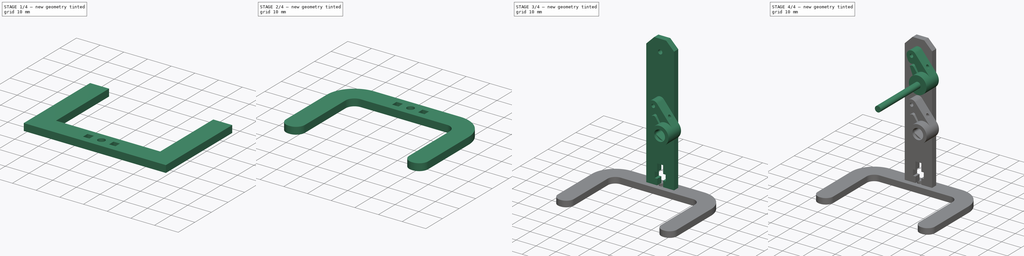
[diagram: build sequence overview — one tinted view per stage of 4, left to right]
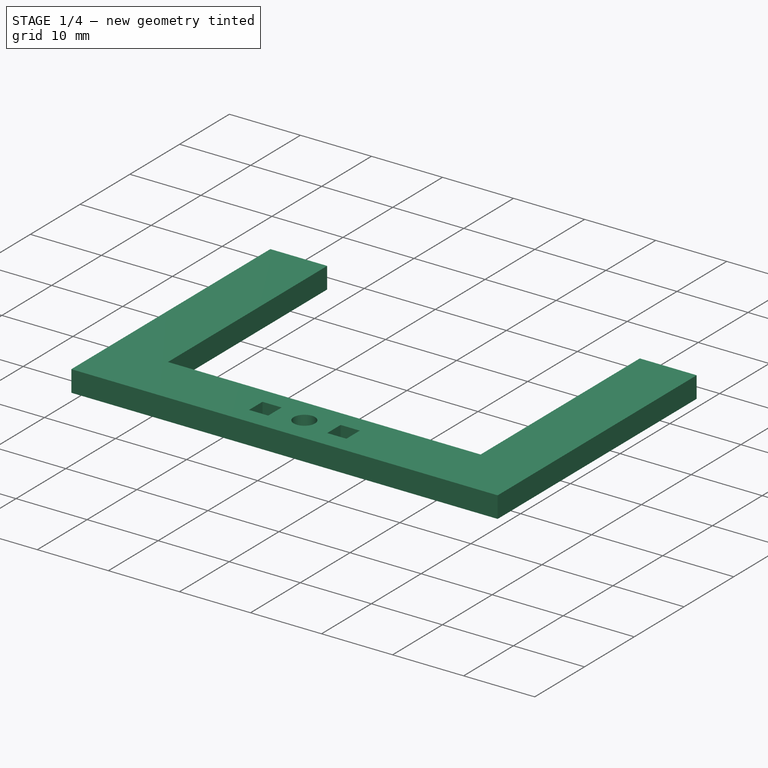
[diagram: stage 1 of 4 — iso view after this stage's code; geometry added in this stage tinted green]
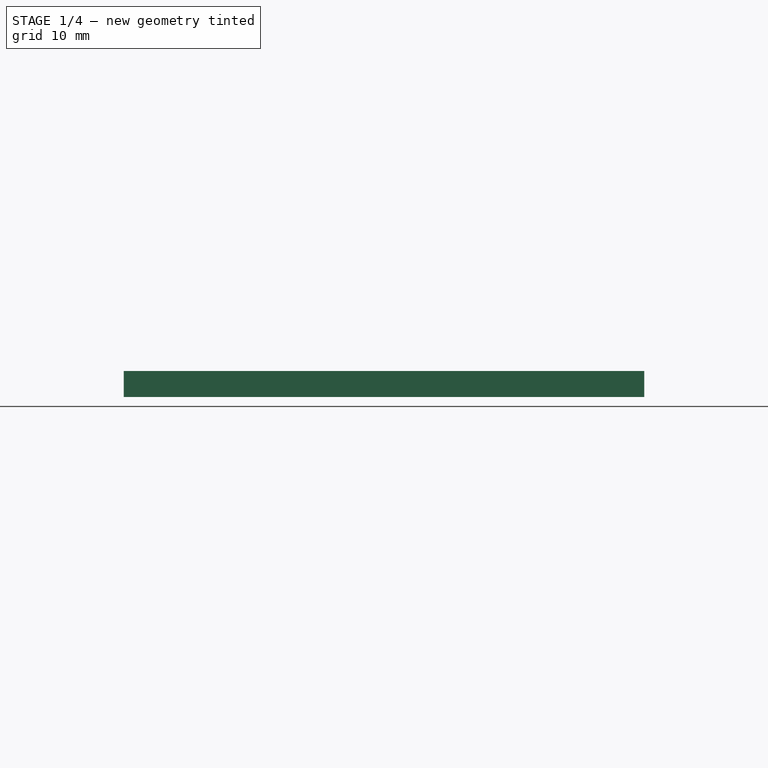
[diagram: stage 1 of 4 — front view after this stage's code; geometry added in this stage tinted green]
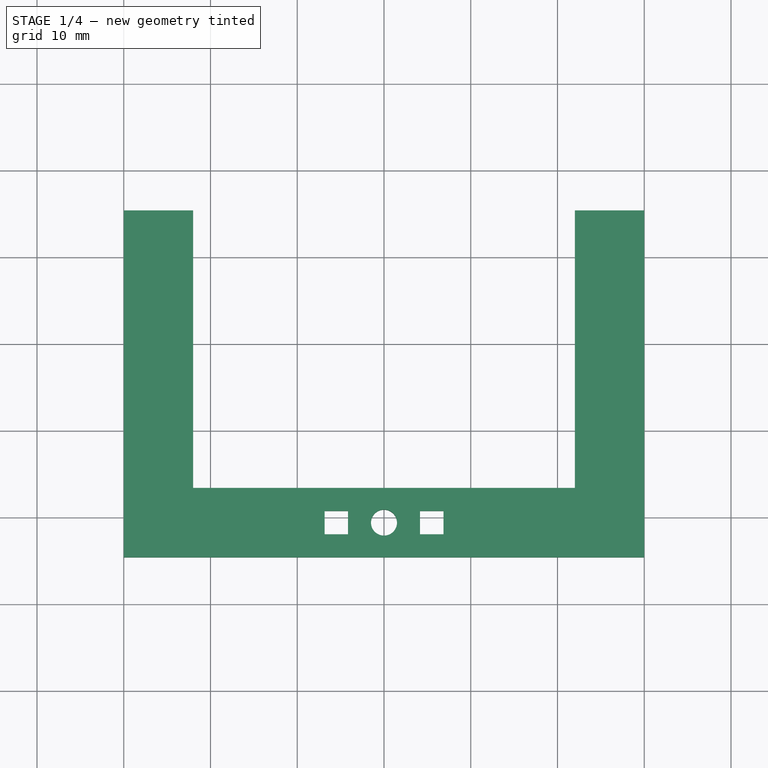
[diagram: stage 1 of 4 — top view after this stage's code; geometry added in this stage tinted green]
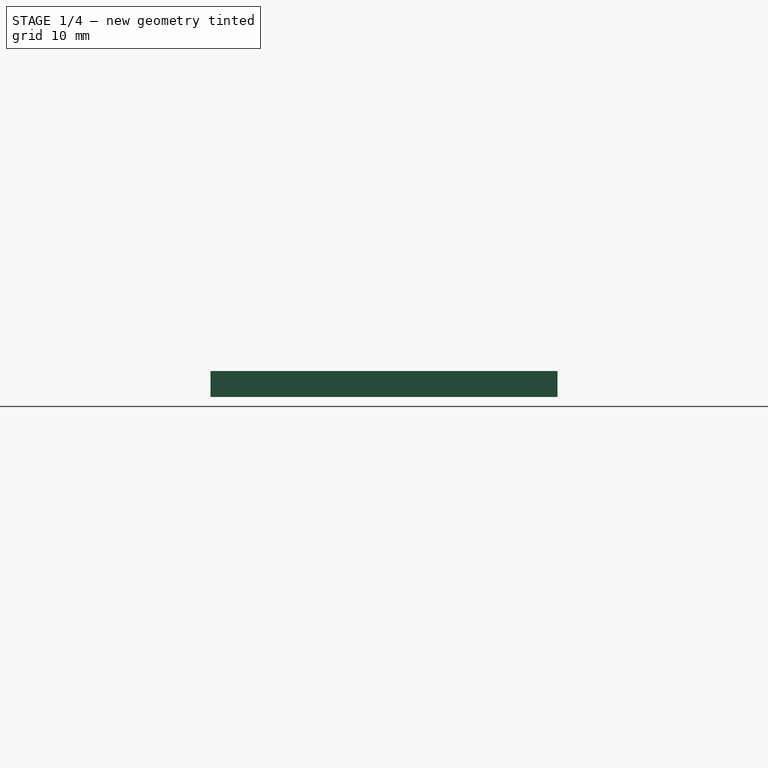
[diagram: stage 1 of 4 — right view after this stage's code; geometry added in this stage tinted green]
FCSTD DOCUMENT  (FreeCAD 2022.709R28846 (Git))
Label: robot_parallel_crank_02
License: Other
objects: PartDesign::SubShapeBinder×5, Sketcher::SketchObject×4, PartDesign::Pad×4, Part::FeaturePython×4, Part::Feature×3, PartDesign::Body×3, PartDesign::Fillet×2, Part::Part2DObjectPython×2, PartDesign::Plane×1, PartDesign::Chamfer×1
note: 43 computed .brp shape members not serialized (recipe doc carries the construction recipe); baked Part::Feature solids carry a one-line shape summary decoded from their .brp

FEATURE [PartDesign::SubShapeBinder] Binder001  label="Binder001(link_free_grip_left)"
  BindCopyOnChange = 0
  BindMode = 0
  ClaimChildren = false
  Context = -> Body002 [Binder001.]
  FillStyle = 0
  Fuse = false
  MakeFace = true
  OffsetFill = false
  OffsetIntersection = false
  OffsetJoinType = 0
  OffsetOpenResult = false
  PartialLoad = false
  Relative = true
  Support = -> [Aruku_link_free_grip_v1001_solid]
  TreeRank = 63
  _Version = 8
FEATURE [PartDesign::SubShapeBinder] Binder002  label="Binder002(link_motor_60deg_left)"
  BindCopyOnChange = 0
  BindMode = 0
  ClaimChildren = false
  Context = -> Body002 [Binder002.]
  FillStyle = 0
  Fuse = false
  MakeFace = true
  OffsetFill = false
  OffsetIntersection = false
  OffsetJoinType = 0
  OffsetOpenResult = false
  PartialLoad = false
  Relative = true
  Support = -> [Aruku_link_motor_60deg_v1001_solid]
  TreeRank = 64
  _Version = 8
FEATURE [PartDesign::SubShapeBinder] Binder003  label="Binder003(motor)"
  BindCopyOnChange = 0
  BindMode = 0
  ClaimChildren = false
  Context = -> Body002 [Binder003.]
  FillStyle = 0
  Fuse = false
  MakeFace = true
  OffsetFill = false
  OffsetIntersection = false
  OffsetJoinType = 0
  OffsetOpenResult = false
  PartialLoad = false
  Relative = true
  Support = -> [Compound]
  TreeRank = 65
  _Version = 8
FEATURE [Sketcher::SketchObject] Sketch006
  ArcFitTolerance = 1e-06
  AttachmentSupport = -> [Binder003]
  ExternalGeometry = -> [Binder003]
  FullyConstrained = true
  MapMode = 5
  Placement = pos=(-7.1145e-05,-19.1,0.000123226) rot=(1,-2e-06,-2e-06;1.57079rad)
  Support = -> [Binder003]
  TreeRank = 66
  sketch-geometry (24):
    g0: LineSegment StartX=5.10606 StartY=0.518036 StartZ=0 EndX=19.1061 EndY=0.518036 EndZ=0
    g1: LineSegment StartX=19.1061 StartY=0.518036 StartZ=0 EndX=19.1061 EndY=-69.482 EndZ=0
    g2: LineSegment StartX=19.1061 StartY=-69.482 StartZ=0 EndX=16.1061 EndY=-69.482 EndZ=0
    g3: LineSegment StartX=5.10606 StartY=-69.482 StartZ=0 EndX=5.10606 EndY=0.518036 EndZ=0
    g4: Circle CenterX=12.1061 CenterY=-5.48196 CenterZ=0 NormalX=0 NormalY=0 NormalZ=1 AngleXU=0 Radius=1.1
    g5: Circle CenterX=12.1061 CenterY=-28.152 CenterZ=0 NormalX=0 NormalY=0 NormalZ=1 AngleXU=0 Radius=1.1
    g6: LineSegment [constr] StartX=12.1061 StartY=-5.48196 StartZ=0 EndX=19.1061 EndY=-5.48196 EndZ=0
    g7: LineSegment [constr] StartX=12.1061 StartY=-5.48196 StartZ=0 EndX=5.10606 EndY=-5.48196 EndZ=0
    g8: LineSegment StartX=10.6061 StartY=-66.582 StartZ=0 EndX=10.6061 EndY=-63.582 EndZ=0
    g9: LineSegment StartX=10.6061 StartY=-63.582 StartZ=0 EndX=9.35606 EndY=-63.582 EndZ=0
    g10: LineSegment StartX=9.35606 StartY=-63.582 StartZ=0 EndX=9.35606 EndY=-60.582 EndZ=0
    g11: LineSegment StartX=9.35606 StartY=-60.582 StartZ=0 EndX=10.6061 EndY=-60.582 EndZ=0
    g12: LineSegment StartX=10.6061 StartY=-60.582 StartZ=0 EndX=10.6061 EndY=-56.582 EndZ=0
    g13: LineSegment StartX=10.6061 StartY=-56.582 StartZ=0 EndX=13.6061 EndY=-56.582 EndZ=0
    g14: LineSegment StartX=13.6061 StartY=-56.582 StartZ=0 EndX=13.6061 EndY=-60.582 EndZ=0
    g15: LineSegment StartX=13.6061 StartY=-60.582 StartZ=0 EndX=14.8561 EndY=-60.582 EndZ=0
    g16: LineSegment StartX=14.8561 StartY=-60.582 StartZ=0 EndX=14.8561 EndY=-63.582 EndZ=0
    g17: LineSegment StartX=14.8561 StartY=-63.582 StartZ=0 EndX=13.6061 EndY=-63.582 EndZ=0
    g18: LineSegment StartX=13.6061 StartY=-63.582 StartZ=0 EndX=13.6061 EndY=-66.582 EndZ=0
    g19: LineSegment StartX=10.6061 StartY=-66.582 StartZ=0 EndX=8.10606 EndY=-66.582 EndZ=0
    g20: LineSegment StartX=8.10606 StartY=-66.582 StartZ=0 EndX=8.10606 EndY=-69.482 EndZ=0
    g21: LineSegment StartX=13.6061 StartY=-66.582 StartZ=0 EndX=16.1061 EndY=-66.582 EndZ=0
    g22: LineSegment StartX=16.1061 StartY=-66.582 StartZ=0 EndX=16.1061 EndY=-69.482 EndZ=0
    g23: LineSegment StartX=8.10606 StartY=-69.482 StartZ=0 EndX=5.10606 EndY=-69.482 EndZ=0
  constraints (71):
    c: Coincident(g0,g1)
    c: Coincident(g1,g2)
    c: Coincident(g23,g3)
    c: Coincident(g3,g0)
    c: Horizontal(g0)
    c: Horizontal(g2)
    c: Vertical(g1)
    c: Vertical(g3)
    c: DistanceX(g23,g2) = 14
    c: Vertical(g5,g4)
    c: Diameter(g4) = 2.2
    c: Equal(g4,g5)
    c: Horizontal(g4,g-4)
    c: Horizontal(g5,g-3)
    c: Coincident(g6,g4)
    c: PointOnObject(g6,g1)
    c: Horizontal(g6)
    c: Coincident(g7,g4)
    c: PointOnObject(g7,g3)
    c: Horizontal(g7)
    c: Equal(g7,g6)
    c: Distance(g4,g0) = 6
    c: DistanceX(g-4,g4) = 12
    c: DistanceY(g3,g3) = 70
    c: Vertical(g8)
    c: Coincident(g8,g9)
    c: Horizontal(g9)
    c: Coincident(g9,g10)
    c: Vertical(g10)
    c: Coincident(g10,g11)
    c: Horizontal(g11)
    c: Coincident(g11,g12)
    c: Vertical(g12)
    c: Coincident(g12,g13)
    c: Horizontal(g13)
    c: Coincident(g13,g14)
    c: Vertical(g14)
    c: Coincident(g14,g15)
    c: Horizontal(g15)
    c: Coincident(g15,g16)
    c: Vertical(g16)
    c: Coincident(g16,g17)
    c: Horizontal(g17)
    c: Coincident(g17,g18)
    c: Vertical(g18)
    c: Equal(g18,g8)
    c: Equal(g12,g14)
    c: Equal(g11,g15)
    c: Equal(g15,g17)
    c: Equal(g17,g9)
    c: DistanceX(g13,g13) = 3
    c: DistanceX(g10,g15) = 5.5
    c: DistanceY(g12,g12) = 4
    c: DistanceY(g10,g10) = 3
    c: DistanceY(g8,g8) = 3
    c: Horizontal(g8,g17)
    c: Coincident(g8,g19)
    c: Horizontal(g19)
    c: Coincident(g19,g20)
    c: Vertical(g20)
    c: Coincident(g18,g21)
    c: Horizontal(g21)
    c: Coincident(g21,g22)
    c: Vertical(g22)
    c: Equal(g21,g19)
    c: Coincident(g2,g22)
    c: Coincident(g23,g20)
    c: Tangent(g2,g23)
    c: Equal(g23,g2)
    c: DistanceY(g20,g20) = 2.9
    c: DistanceX(g2,g2) = 3
FEATURE [PartDesign::Pad] Pad005
  ClaimChildren = false
  Direction = (1,1,1)
  Fit = 0
  FitJoin = 0
  InnerFit = 0
  InnerFitJoin = 0
  InnerTaperAngle = 0
  InnerTaperAngleRev = 0
  Length = 3
  Length2 = 100
  Linearize = true
  NewSolid = false
  Profile = -> Sketch006
  Suppress = false
  TreeRank = 67
  Type = 0
  _ProfileBasedVersion = 1
FEATURE [PartDesign::Chamfer] Chamfer001
  Angle = 45
  Base = -> Pad005 [Edge14,Edge11]
  BaseFeature = -> Pad005
  ChamferType = 0
  FlipDirection = false
  NewSolid = false
  Size = 4
  Size2 = 1
  SupportTransform = false
  Suppress = false
  TreeRank = 75
FEATURE [PartDesign::SubShapeBinder] Binder004  label="Binder004(leg_left)"
  BindCopyOnChange = 0
  BindMode = 0
  ClaimChildren = false
  Context = -> Body [Binder004.]
  FillStyle = 0
  Fuse = false
  MakeFace = true
  OffsetFill = false
  OffsetIntersection = false
  OffsetJoinType = 0
  OffsetOpenResult = false
  PartialLoad = false
  Relative = true
  Support = -> [Body002]
  TreeRank = 76
  _Version = 8
FEATURE [Sketcher::SketchObject] Sketch
  ArcFitTolerance = 1e-06
  AttachmentSupport = -> [Binder004]
  ExternalGeometry = -> [Binder004]
  FullyConstrained = true
  MapMode = 5
  Placement = pos=(0,1.81809e-05,2.81804) rot=(1,0,0;3.14159rad)
  Support = -> [Binder004]
  TreeRank = 18
  sketch-geometry (27):
    g0: LineSegment StartX=-30 StartY=24.6005 StartZ=0 EndX=-30 EndY=-15.3995 EndZ=0
    g1: LineSegment StartX=-30 StartY=-15.3995 StartZ=0 EndX=-22 EndY=-15.3995 EndZ=0
    g2: LineSegment StartX=-22 StartY=-15.3995 StartZ=0 EndX=-22 EndY=16.6005 EndZ=0
    g3: LineSegment StartX=-22 StartY=16.6005 StartZ=0 EndX=22 EndY=16.6005 EndZ=0
    g4: LineSegment StartX=22 StartY=16.6005 StartZ=0 EndX=22 EndY=-15.3995 EndZ=0
    g5: LineSegment StartX=22 StartY=-15.3995 StartZ=0 EndX=30 EndY=-15.3995 EndZ=0
    g6: LineSegment StartX=30 StartY=-15.3995 StartZ=0 EndX=30 EndY=24.6005 EndZ=0
    g7: LineSegment StartX=30 StartY=24.6005 StartZ=0 EndX=-30 EndY=24.6005 EndZ=0
    g8: LineSegment [constr] StartX=0 StartY=16.6005 StartZ=0 EndX=0 EndY=19.1005 EndZ=0
    g9: LineSegment [constr] StartX=0 StartY=24.6005 StartZ=0 EndX=0 EndY=22.1005 EndZ=0
    g10: LineSegment StartX=-6.84402 StartY=21.9505 StartZ=0 EndX=-4.14402 EndY=21.9505 EndZ=0
    g11: LineSegment StartX=-4.14402 StartY=21.9505 StartZ=0 EndX=-4.14402 EndY=19.2505 EndZ=0
    g12: LineSegment StartX=-4.14402 StartY=19.2505 StartZ=0 EndX=-6.84402 EndY=19.2505 EndZ=0
    g13: LineSegment StartX=-6.84402 StartY=19.2505 StartZ=0 EndX=-6.84402 EndY=21.9505 EndZ=0
    g14: LineSegment StartX=4.15598 StartY=21.9505 StartZ=0 EndX=6.85598 EndY=21.9505 EndZ=0
    g15: LineSegment StartX=6.85598 StartY=21.9505 StartZ=0 EndX=6.85598 EndY=19.2505 EndZ=0
    g16: LineSegment StartX=6.85598 StartY=19.2505 StartZ=0 EndX=4.15598 EndY=19.2505 EndZ=0
    g17: LineSegment StartX=4.15598 StartY=19.2505 StartZ=0 EndX=4.15598 EndY=21.9505 EndZ=0
    g18: LineSegment [constr] StartX=-6.84402 StartY=21.9505 StartZ=0 EndX=-6.84402 EndY=22.1005 EndZ=0
    g19: LineSegment [constr] StartX=-6.84402 StartY=21.9505 StartZ=0 EndX=-6.99402 EndY=21.9505 EndZ=0
    g20: LineSegment [constr] StartX=-4.14402 StartY=19.2505 StartZ=0 EndX=-3.99401 EndY=19.2505 EndZ=0
    g21: LineSegment [constr] StartX=-4.14402 StartY=19.2505 StartZ=0 EndX=-4.14402 EndY=19.1005 EndZ=0
    g22: LineSegment [constr] StartX=4.15598 StartY=21.9505 StartZ=0 EndX=4.15598 EndY=22.1005 EndZ=0
    g23: LineSegment [constr] StartX=4.15598 StartY=21.9505 StartZ=0 EndX=4.00598 EndY=21.9505 EndZ=0
    g24: LineSegment [constr] StartX=6.85598 StartY=19.2505 StartZ=0 EndX=7.00599 EndY=19.2505 EndZ=0
    g25: LineSegment [constr] StartX=6.85598 StartY=19.2505 StartZ=0 EndX=6.85598 EndY=19.1005 EndZ=0
    g26: Circle CenterX=0 CenterY=20.6005 CenterZ=0 NormalX=0 NormalY=0 NormalZ=1 AngleXU=0 Radius=1.5
  constraints (81):
    c: Vertical(g0)
    c: Coincident(g0,g1)
    c: Horizontal(g1)
    c: Coincident(g1,g2)
    c: Vertical(g2)
    c: Coincident(g2,g3)
    c: Horizontal(g3)
    c: Coincident(g3,g4)
    c: Vertical(g4)
    c: Coincident(g4,g5)
    c: Horizontal(g5)
    c: Coincident(g5,g6)
    c: Vertical(g6)
    c: Coincident(g6,g7)
    c: Coincident(g7,g0)
    c: Symmetric(g0,g6,g-2)
    c: DistanceX(g7,g7) = 60
    c: Equal(g0,g6)
    c: Equal(g5,g1)
    c: DistanceX(g1,g1) = 8
    c: DistanceY(g0,g0) = 40
    c: PointOnObject(g8,g3)
    c: PointOnObject(g8,g-3)
    c: Vertical(g8)
    c: PointOnObject(g9,g7)
    c: PointOnObject(g9,g-4)
    c: Vertical(g9)
    c: PointOnObject(g8,g-2)
    c: PointOnObject(g9,g-2)
    c: Equal(g9,g8)
    c: DistanceY(g8,g9) = 8
    c: Coincident(g10,g11)
    c: Coincident(g11,g12)
    c: Coincident(g12,g13)
    c: Coincident(g13,g10)
    c: Horizontal(g10)
    c: Horizontal(g12)
    c: Vertical(g11)
    c: Vertical(g13)
    c: Coincident(g14,g15)
    c: Coincident(g15,g16)
    c: Coincident(g16,g17)
    c: Coincident(g17,g14)
    c: Horizontal(g14)
    c: Horizontal(g16)
    c: Vertical(g15)
    c: Vertical(g17)
    c: DistanceY(g10,g-8) = 0.15
    c: Coincident(g18,g10)
    c: PointOnObject(g18,g-9)
    c: Coincident(g19,g10)
    c: PointOnObject(g19,g-8)
    c: Horizontal(g19)
    c: Coincident(g20,g11)
    c: PointOnObject(g20,g-5)
    c: Horizontal(g20)
    c: Coincident(g21,g11)
    c: PointOnObject(g21,g-10)
    c: Vertical(g21)
    c: Equal(g21,g20)
    c: Equal(g20,g19)
    c: Equal(g19,g18)
    c: Vertical(g18)
    c: Coincident(g22,g14)
    c: PointOnObject(g22,g-12)
    c: Vertical(g22)
    c: Coincident(g23,g14)
    c: PointOnObject(g23,g-6)
    c: Horizontal(g23)
    c: Coincident(g24,g15)
    c: PointOnObject(g24,g-7)
    c: Horizontal(g24)
    c: Coincident(g25,g15)
    c: PointOnObject(g25,g-11)
    c: Vertical(g25)
    c: Equal(g25,g24)
    c: Equal(g24,g23)
    c: Equal(g23,g22)
    c: Equal(g22,g18)
    c: Symmetric(g9,g8,g26)
    c: Diameter(g26) = 3
FEATURE [PartDesign::Pad] Pad
  ClaimChildren = false
  Direction = (1,1,1)
  Fit = 0
  FitJoin = 0
  InnerFit = 0
  InnerFitJoin = 0
  InnerTaperAngle = 0
  InnerTaperAngleRev = 0
  Length = 3
  Length2 = 100
  Linearize = true
  NewSolid = false
  Profile = -> Sketch
  Suppress = false
  TreeRank = 19
  Type = 0
  _ProfileBasedVersion = 1
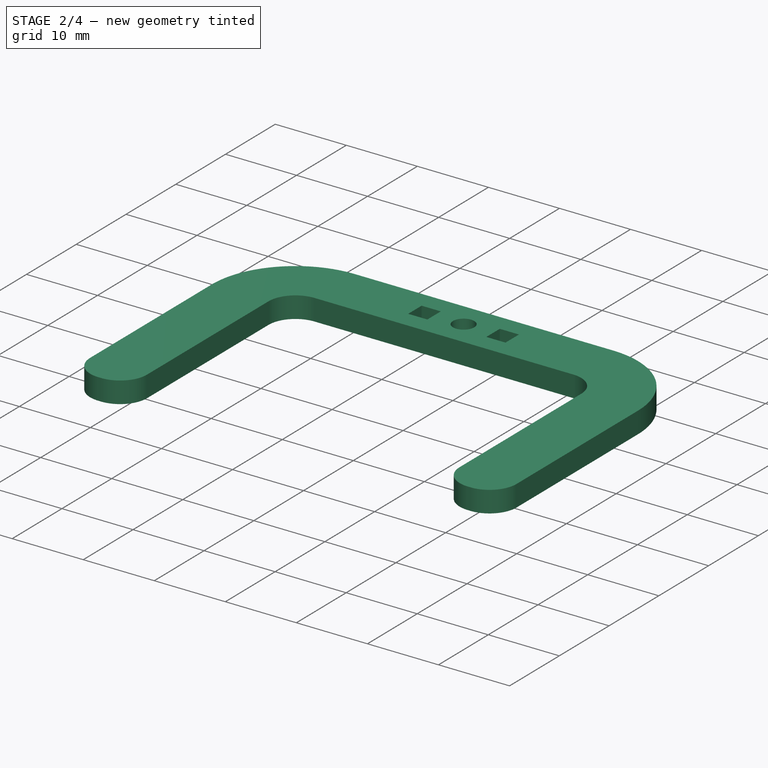
[diagram: stage 2 of 4 — iso view after this stage's code; geometry added in this stage tinted green]
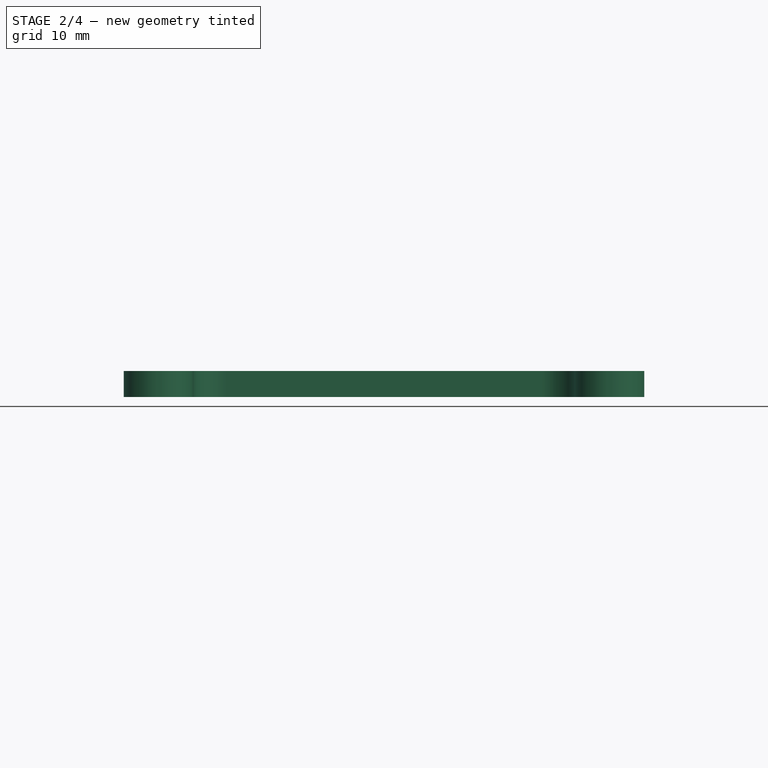
[diagram: stage 2 of 4 — front view after this stage's code; geometry added in this stage tinted green]
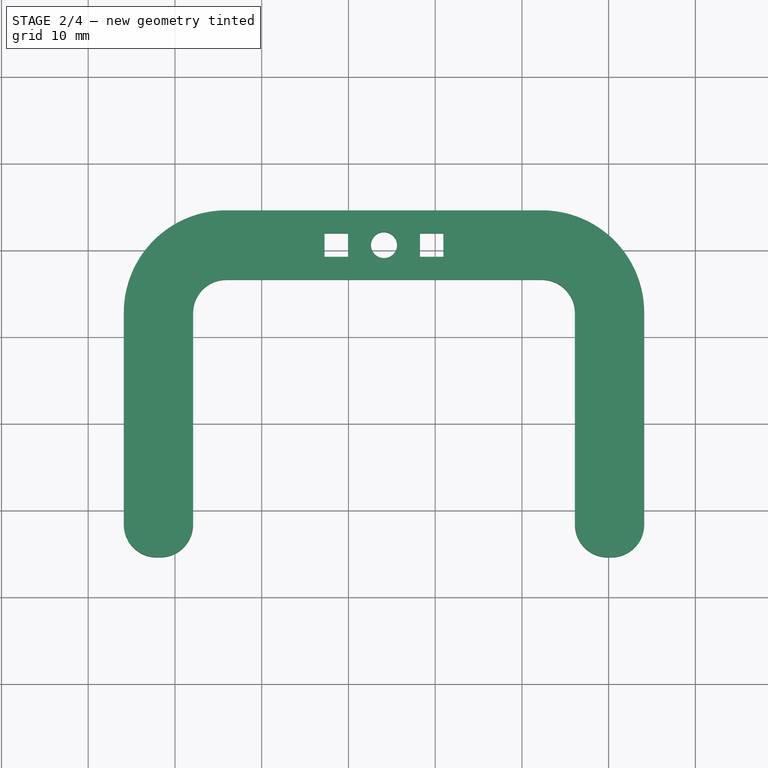
[diagram: stage 2 of 4 — top view after this stage's code; geometry added in this stage tinted green]
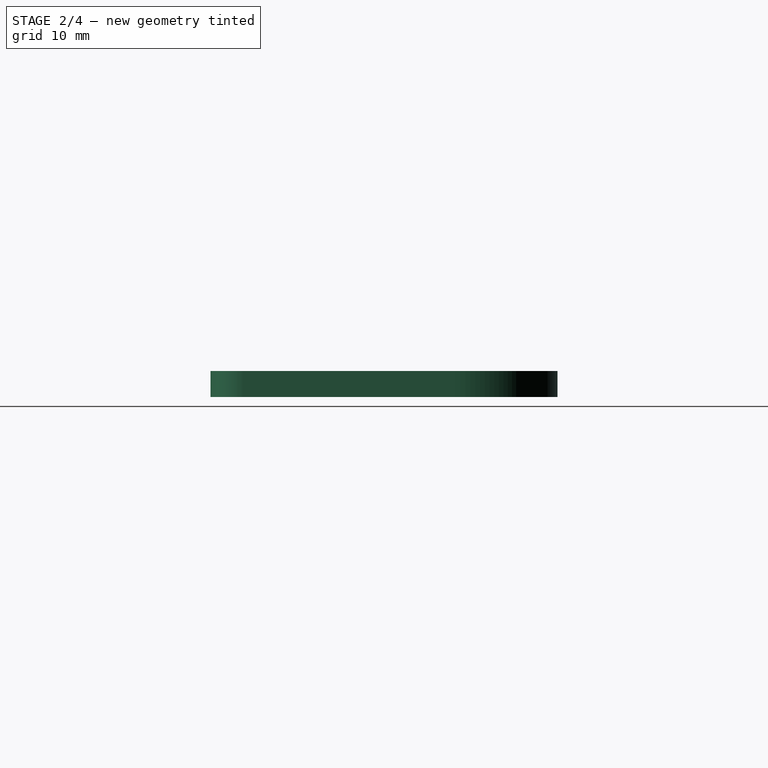
[diagram: stage 2 of 4 — right view after this stage's code; geometry added in this stage tinted green]
FEATURE [PartDesign::Fillet] Fillet
  Base = -> Pad [Edge2,Edge5,Edge14,Edge17,Edge8,Edge11]
  BaseFeature = -> Pad
  NewSolid = false
  Radius = 3.8
  SupportTransform = false
  Suppress = false
  TreeRank = 77
FEATURE [PartDesign::Fillet] Fillet001
  Base = -> Fillet [Edge29,Edge3]
  BaseFeature = -> Fillet
  NewSolid = false
  Radius = 11.8
  SupportTransform = false
  Suppress = false
  TreeRank = 78
FEATURE [PartDesign::Body] Body  label="feet_left"
  AutoGroupSolids = false
  ClaimAllChildren = false
  ExportMode = 0
  Group = -> [Sketch,Pad,Fillet,Fillet001,Binder004]
  Origin = -> Origin
  Placement = pos=(12.1,0,-69.4) rot=(0,0,1;0rad)
  Tip = -> Fillet001
  TreeRank = 17
  _ExportChildren = -> [Pad,Fillet,Fillet001,Binder004]
  _GroupVersion = 1
FEATURE [Part::FeaturePython] Clone003  label="feet_right"  # Draft clone (typed FeaturePython)
  AttacherType = Attacher::AttachEngine3D
  Fuse = false
  Objects = -> [Body]
  Placement = pos=(-5.9,2.2e-15,-59) rot=(0,0,1;3.14159rad)
  Scale = (1,1,1)
  TreeRank = 74
FEATURE [Part::Part2DObjectPython] Shape2DView  # Draft 2D object (typed FeaturePython)
  Base = -> Body
  FuseArch = false
  HiddenLines = false
  InPlace = true
  Projection = (0,0,1)
  ProjectionMode = 0
  SegmentLength = 0.05
  Tessellation = false
  TreeRank = 79
  VisibleOnly = false
FEATURE [Part::Part2DObjectPython] Shape2DView001  # Draft 2D object (typed FeaturePython)
  Base = -> Body002
  FuseArch = false
  HiddenLines = false
  InPlace = true
  Projection = (0,-1,0)
  ProjectionMode = 0
  SegmentLength = 0.05
  Tessellation = false
  TreeRank = 80
  VisibleOnly = false
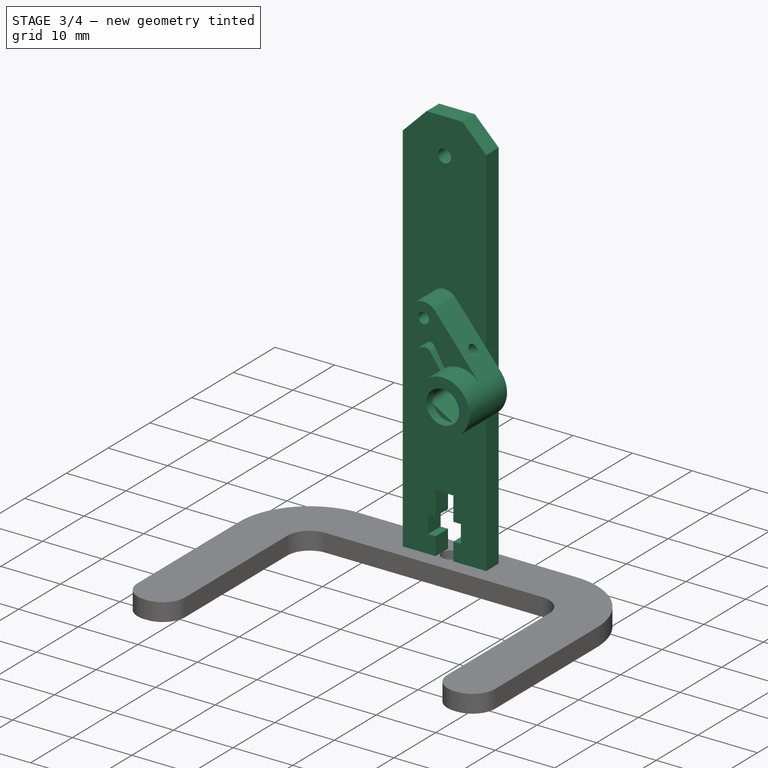
[diagram: stage 3 of 4 — iso view after this stage's code; geometry added in this stage tinted green]
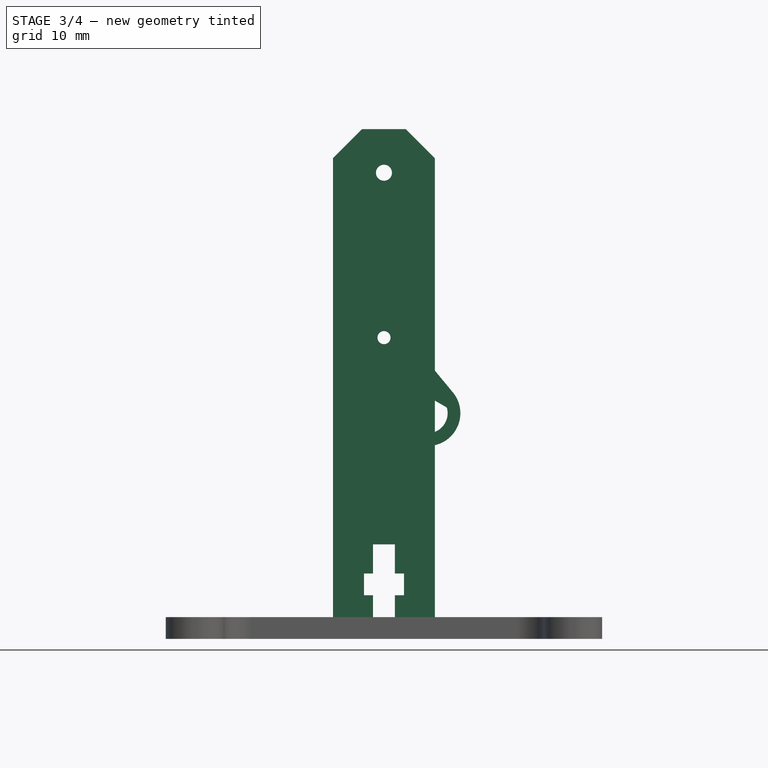
[diagram: stage 3 of 4 — front view after this stage's code; geometry added in this stage tinted green]
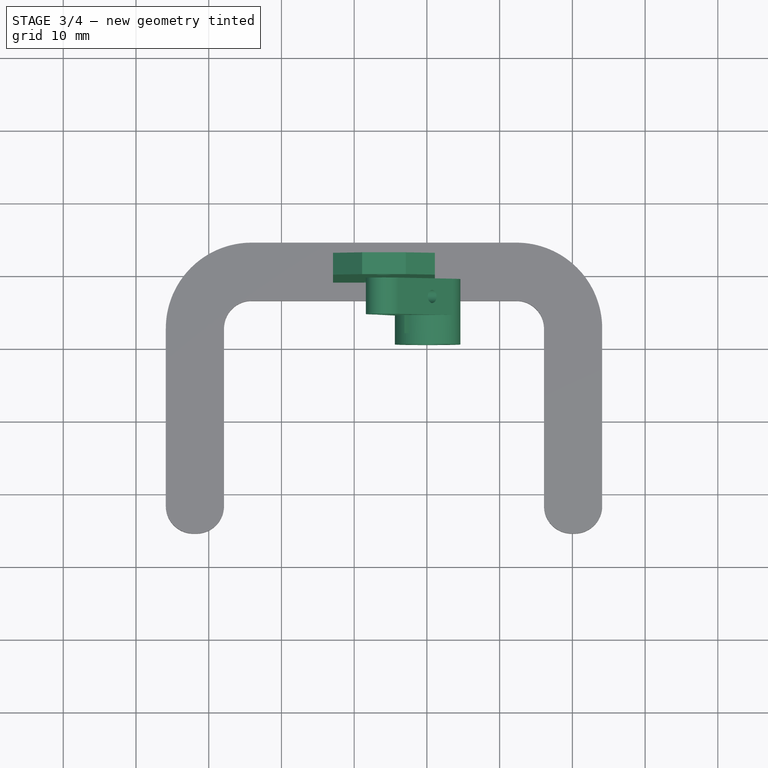
[diagram: stage 3 of 4 — top view after this stage's code; geometry added in this stage tinted green]
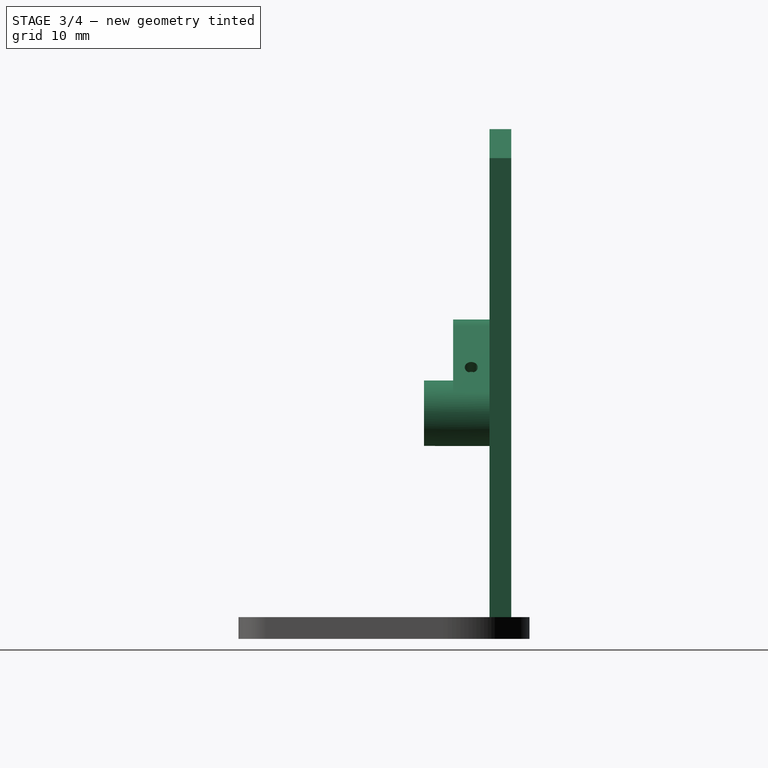
[diagram: stage 3 of 4 — right view after this stage's code; geometry added in this stage tinted green]
FEATURE [Part::Feature] Aruku_link_motor_60deg_v1001_solid  label="link_motor_60deg_left"
  Placement = pos=(0.1,-19.1,-28.15) rot=(0,-0.707107,-0.707107;3.14159rad)
  TreeRank = 51
  shape: bbox 19 x 9 x 9 mm, 1808 faces (baked)
FEATURE [Part::FeaturePython] Clone001  label="link_motor_60deg_right"  # Draft clone (typed FeaturePython)
  AttacherType = Attacher::AttachEngine3D
  Fuse = false
  Objects = -> [Aruku_link_motor_60deg_v1001_solid]
  Placement = pos=(0.1,19.1,-28.15) rot=(0.774598,0.447214,-0.447211;1.82347rad)
  Scale = (1,1,1)
  TreeRank = 52
FEATURE [PartDesign::Body] Body002  label="leg_left"
  AutoGroupSolids = false
  ClaimAllChildren = false
  ExportMode = 0
  Group = -> [Binder001,Binder002,Binder003,Sketch006,Pad005,Chamfer001]
  Origin = -> Origin002
  Tip = -> Chamfer001
  TreeRank = 62
  _ExportChildren = -> [Binder001,Binder002,Binder003,Pad005,Chamfer001]
  _GroupVersion = 1
FEATURE [Part::FeaturePython] Clone002  label="leg_right"  # Draft clone (typed FeaturePython)
  AttacherType = Attacher::AttachEngine3D
  Fuse = false
  Objects = -> [Body002]
  Placement = pos=(6.2,-8e-16,10.4) rot=(0,0,1;3.14159rad)
  Scale = (1,1,1)
  TreeRank = 72
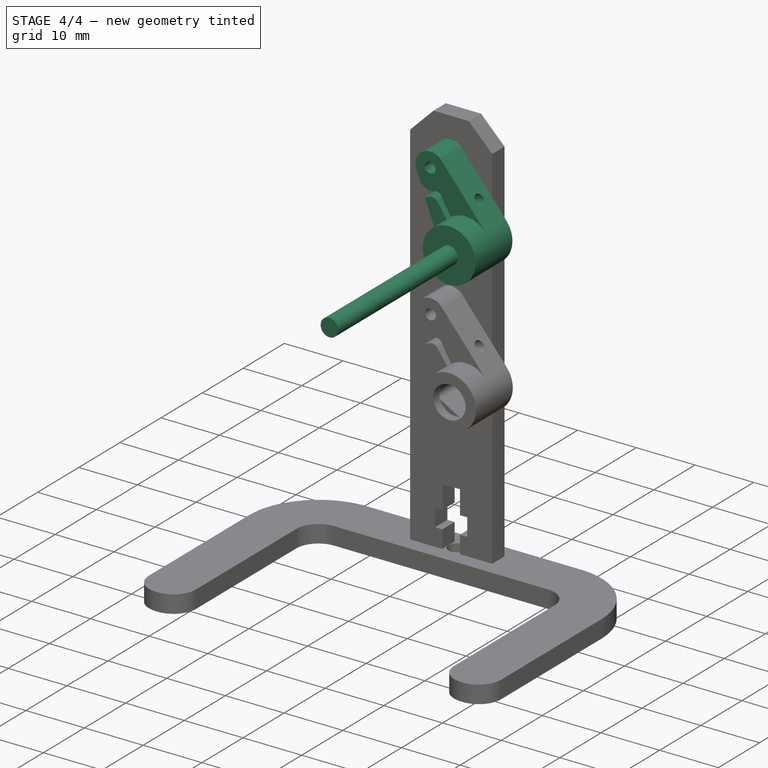
[diagram: stage 4 of 4 — iso view after this stage's code; geometry added in this stage tinted green]
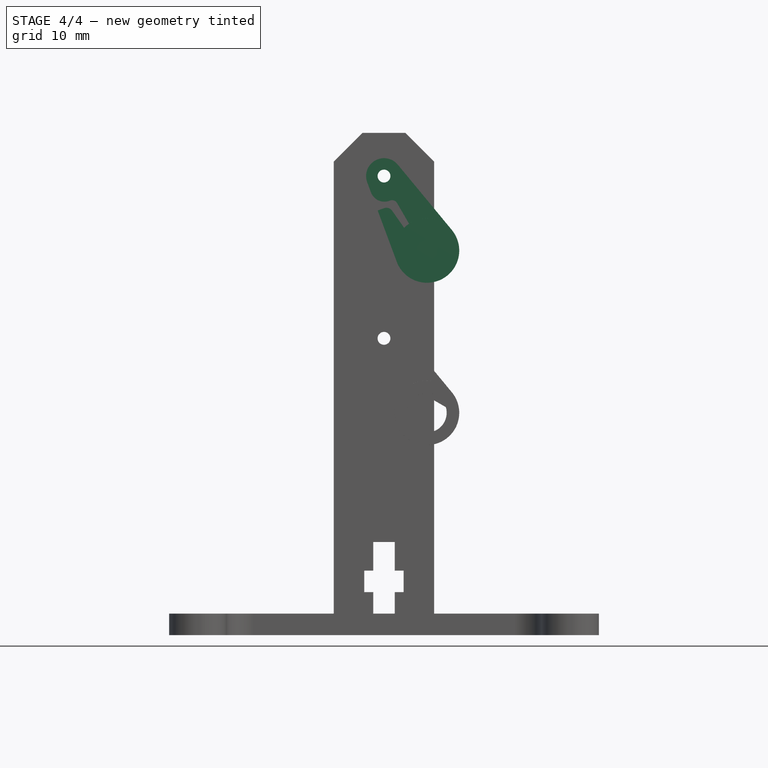
[diagram: stage 4 of 4 — front view after this stage's code; geometry added in this stage tinted green]
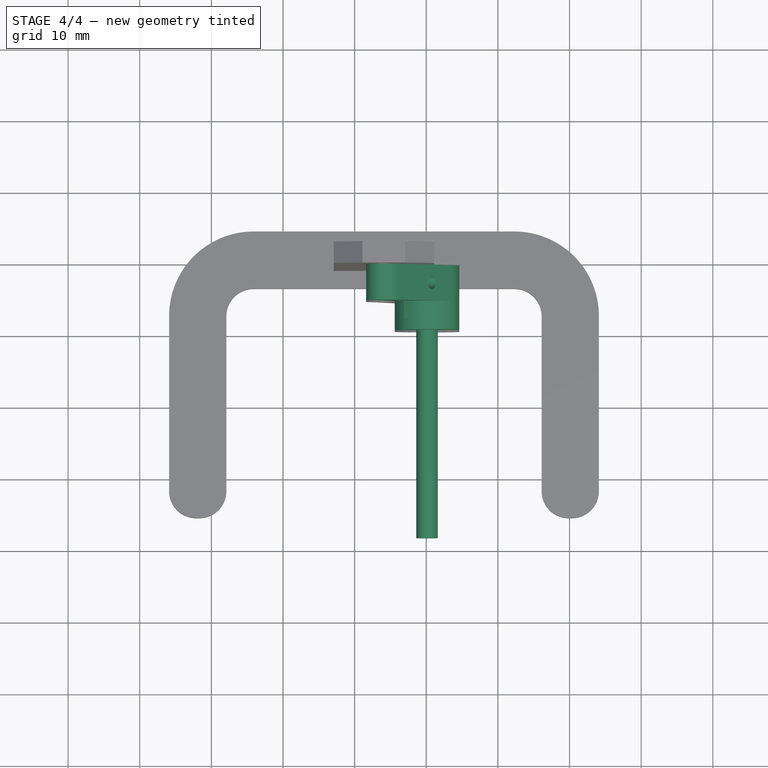
[diagram: stage 4 of 4 — top view after this stage's code; geometry added in this stage tinted green]
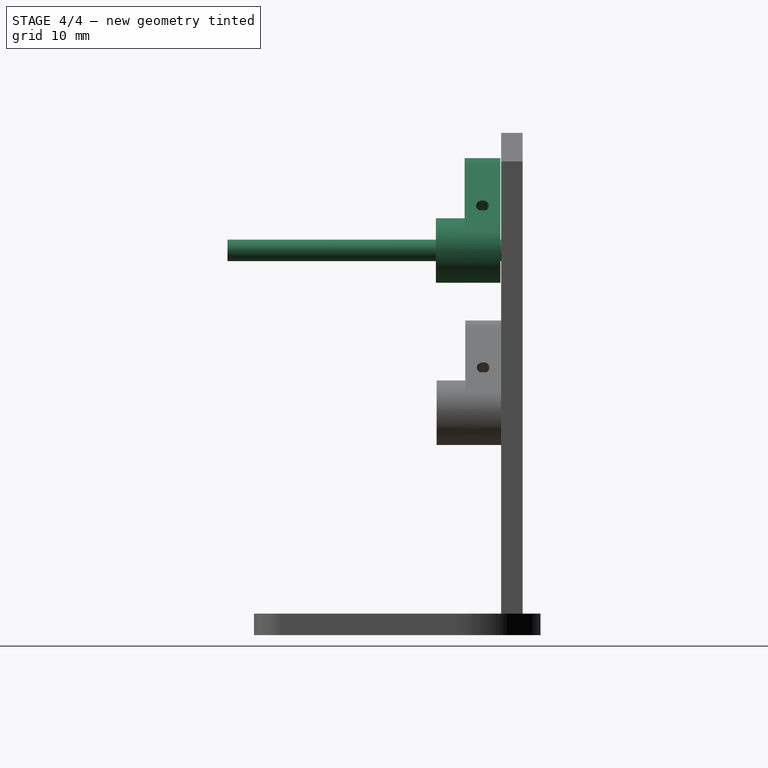
[diagram: stage 4 of 4 — right view after this stage's code; geometry added in this stage tinted green]
FEATURE [Part::Feature] Compound  label="motor"
  Placement = pos=(0,-9.4,0) rot=(0.730842,0.482634,0.482633;4.40384rad)
  TreeRank = 28
  shape: bbox 42.53 x 38.2 x 66 mm, 234 faces, 3 solids (baked)
FEATURE [PartDesign::SubShapeBinder] Binder  label="Binder(motor)"
  BindCopyOnChange = 0
  BindMode = 0
  ClaimChildren = false
  Context = -> Body001 [Binder.]
  FillStyle = 0
  Fuse = false
  MakeFace = true
  OffsetFill = false
  OffsetIntersection = false
  OffsetJoinType = 0
  OffsetOpenResult = false
  PartialLoad = false
  Relative = true
  Support = -> [Compound]
  TreeRank = 39
  _Version = 8
FEATURE [PartDesign::Plane] DatumPlane
  AttachmentOffset = pos=(0,0,-9.4) rot=(0,0,1;0rad)
  AttachmentSupport = -> [Binder]
  Length = 10
  MapMode = 5
  MinimumLength = 10
  MinimumWidth = 10
  Placement = pos=(1e-15,2.60842e-10,-4.1e-15) rot=(1,-2e-06,-2e-06;1.57079rad)
  ResizeMode = 0
  Support = -> [Binder]
  TreeRank = 40
  Width = 10
FEATURE [Sketcher::SketchObject] Sketch004
  ArcFitTolerance = 1e-06
  AttachmentSupport = -> [DatumPlane]
  ExternalGeometry = -> [Binder]
  FullyConstrained = true
  MapMode = 5
  Placement = pos=(1e-15,2.60842e-10,-4.1e-15) rot=(1,-2e-06,-2e-06;1.57079rad)
  Support = -> [DatumPlane]
  TreeRank = 41
  sketch-geometry (1):
    g0: Circle CenterX=0.106057 CenterY=-5.48196 CenterZ=0 NormalX=0 NormalY=0 NormalZ=1 AngleXU=0 Radius=1.5
  constraints (2):
    c: Coincident(g0,g-3)
    c: Diameter(g0) = 3
FEATURE [PartDesign::Pad] Pad003
  ClaimChildren = false
  Direction = (1,1,1)
  Fit = 0
  FitJoin = 0
  InnerFit = 0
  InnerFitJoin = 0
  InnerTaperAngle = 0
  InnerTaperAngleRev = 0
  Length = 10
  Length2 = 100
  Linearize = true
  Midplane = true
  NewSolid = false
  Placement = pos=(1e-15,2.60842e-10,-4.1e-15) rot=(1,-2e-06,-2e-06;1.57079rad)
  Profile = -> Sketch004
  Suppress = false
  TreeRank = 42
  Type = 3
  UpToFace = -> Binder [Face74]
  _ProfileBasedVersion = 1
FEATURE [Sketcher::SketchObject] Sketch005
  ArcFitTolerance = 1e-06
  AttachmentSupport = -> [Pad003]
  ExternalGeometry = -> [Pad003]
  FullyConstrained = true
  MapMode = 5
  Placement = pos=(1e-15,2.60842e-10,-4.1e-15) rot=(-1,2e-06,-2e-06;1.5708rad)
  Support = -> [Pad003]
  TreeRank = 43
  sketch-geometry (1):
    g0: Circle CenterX=0.106057 CenterY=5.48196 CenterZ=0 NormalX=0 NormalY=0 NormalZ=1 AngleXU=0 Radius=1.5
  constraints (2):
    c: Coincident(g0,g-3)
    c: Equal(g0,g-3)
FEATURE [PartDesign::Pad] Pad004
  BaseFeature = -> Pad003
  ClaimChildren = false
  Direction = (1,1,1)
  Fit = 0
  FitJoin = 0
  InnerFit = 0
  InnerFitJoin = 0
  InnerTaperAngle = 0
  InnerTaperAngleRev = 0
  Length = 10
  Length2 = 100
  Linearize = true
  NewSolid = false
  Placement = pos=(1e-15,2.60842e-10,-4.1e-15) rot=(1,-2e-06,-2e-06;1.57079rad)
  Profile = -> Sketch005
  Suppress = false
  TreeRank = 44
  Type = 3
  UpToFace = -> Binder [Face73]
  _ProfileBasedVersion = 1
FEATURE [PartDesign::Body] Body001  label="free_pin"
  AutoGroupSolids = false
  ClaimAllChildren = false
  ExportMode = 0
  Group = -> [Binder,DatumPlane,Sketch004,Pad003,Sketch005,Pad004]
  Origin = -> Origin001
  Tip = -> Pad004
  TreeRank = 38
  _ExportChildren = -> [Binder,DatumPlane,Pad003,Pad004]
  _GroupVersion = 1
FEATURE [Part::Feature] Aruku_link_free_grip_v1001_solid  label="link_free_grip_left"
  AttacherType = Attacher::AttachEngine3D
  Placement = pos=(0.1,-19,-5.5) rot=(0,-0.707107,-0.707107;3.14159rad)
  TreeRank = 48
  shape: bbox 19 x 9 x 9 mm, 1570 faces (baked)
FEATURE [Part::FeaturePython] Clone  label="link_free_grip_right"  # Draft clone (typed FeaturePython)
  AttacherType = Attacher::AttachEngine3D
  Fuse = false
  Objects = -> [Aruku_link_free_grip_v1001_solid]
  Placement = pos=(0.1,19,-5.5) rot=(0.774598,0.447214,-0.447211;1.82347rad)
  Scale = (1,1,1)
  TreeRank = 49
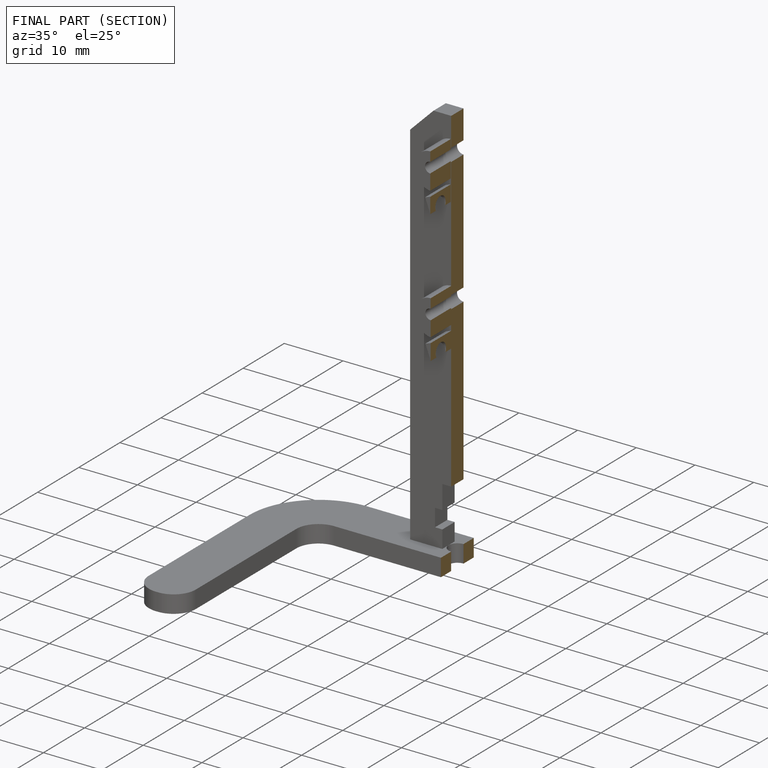
[diagram: finished part — half-section view (interior)]
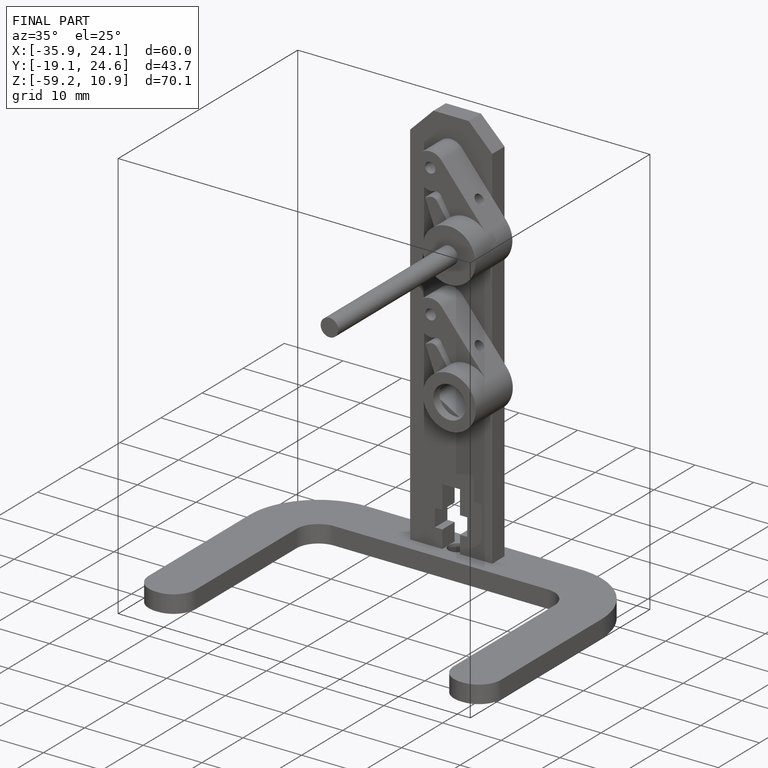
[diagram: finished part — iso view with bounding-box wireframe]
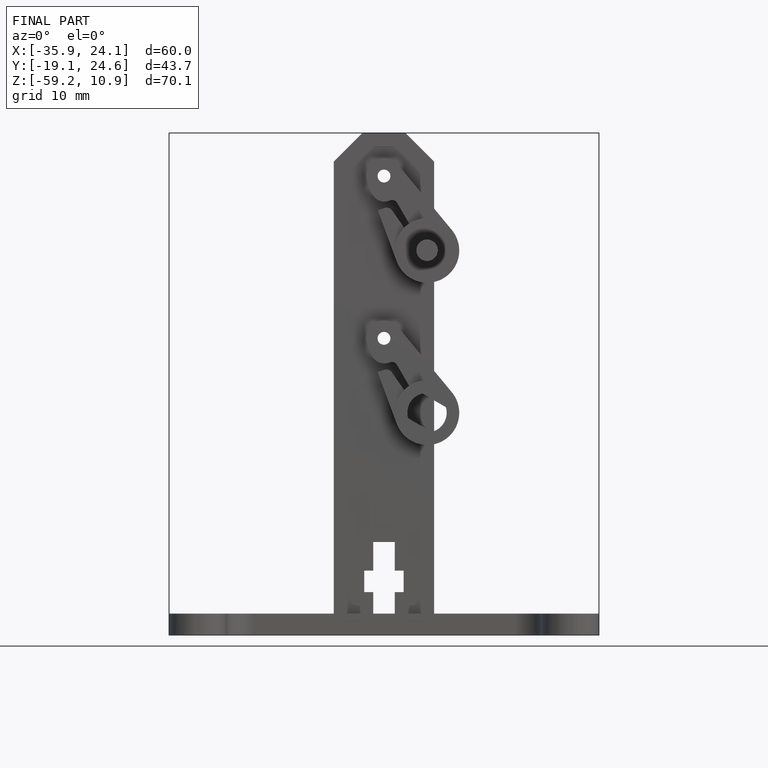
[diagram: finished part — front view with bounding-box wireframe]
